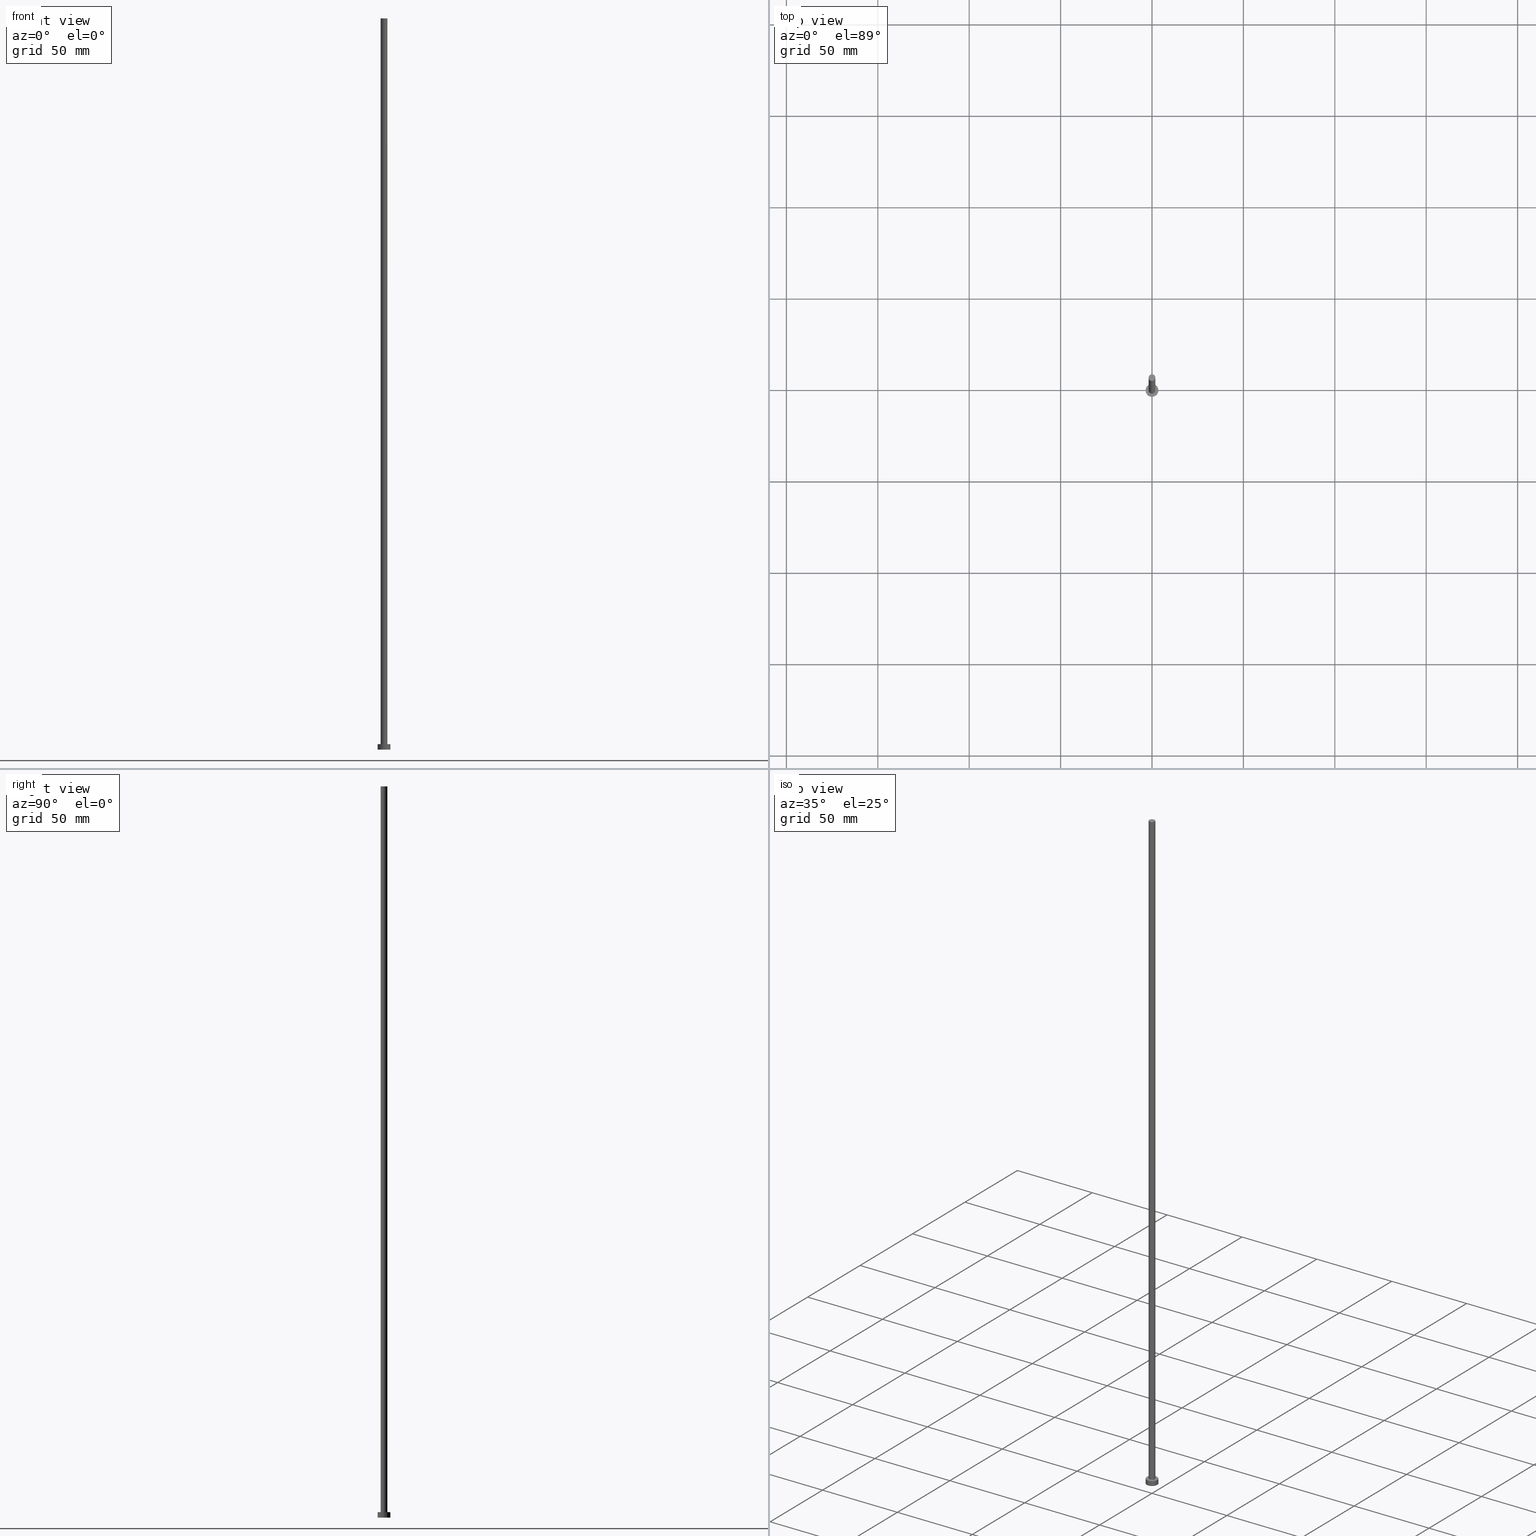
[diagram: canonical four-view strip — front | top / right | iso, engineering-drawing reading convention]
A machine part, canonical four-view strip (front | top / right | iso — engineering-drawing reading convention). The complete STEP part file that produces these views, byte-faithful:
ISO-10303-21;
HEADER;
FILE_DESCRIPTION (( 'STEP AP203' ),
    '1' );
FILE_NAME ('9256.STEP',
    '2026-02-06T12:42:30',
    ( '' ),
    ( '' ),
    'SwSTEP 2.0',
    'SolidWorks 2019',
    '' );
FILE_SCHEMA (( 'CONFIG_CONTROL_DESIGN' ));
ENDSEC;

DATA;
#1 = FACE_OUTER_BOUND ( 'NONE', #198, .T. ) ;
#2 = DIRECTION ( 'NONE',  ( 0.000000000000000000, 0.000000000000000000, 1.000000000000000000 ) ) ;
#3 = AXIS2_PLACEMENT_3D ( 'NONE', #74, #69, #118 ) ;
#4 = DIRECTION ( 'NONE',  ( -1.000000000000000000, 0.000000000000000000, 0.000000000000000000 ) ) ;
#5 = ORIENTED_EDGE ( 'NONE', *, *, #178, .T. ) ;
#6 = EDGE_CURVE ( 'NONE', #110, #68, #36, .T. ) ;
#7 = ORIENTED_EDGE ( 'NONE', *, *, #182, .F. ) ;
#8 = DIRECTION ( 'NONE',  ( 1.000000000000000000, 0.000000000000000000, 0.000000000000000000 ) ) ;
#9 = MECHANICAL_CONTEXT ( 'NONE', #63, 'mechanical' ) ;
#10 = LINE ( 'NONE', #144, #81 ) ;
#11 = ORIENTED_EDGE ( 'NONE', *, *, #165, .F. ) ;
#12 = CALENDAR_DATE ( 2026, 6, 2 ) ;
#13 = AXIS2_PLACEMENT_3D ( 'NONE', #143, #234, #56 ) ;
#14 = PERSON_AND_ORGANIZATION ( #111, #47 ) ;
#15 = EDGE_LOOP ( 'NONE', ( #243, #52 ) ) ;
#16 = CC_DESIGN_PERSON_AND_ORGANIZATION_ASSIGNMENT ( #32, #112, ( #194 ) ) ;
#17 = VERTEX_POINT ( 'NONE', #175 ) ;
#18 = PERSON_AND_ORGANIZATION ( #111, #47 ) ;
#19 = DIRECTION ( 'NONE',  ( -0.000000000000000000, -0.000000000000000000, -1.000000000000000000 ) ) ;
#20 = DATE_AND_TIME ( #156, #221 ) ;
#21 = DIRECTION ( 'NONE',  ( -0.000000000000000000, -0.000000000000000000, -1.000000000000000000 ) ) ;
#22 = CC_DESIGN_DATE_AND_TIME_ASSIGNMENT ( #75, #249, ( #49 ) ) ;
#23 = PLANE ( 'NONE',  #246 ) ;
#24 = CARTESIAN_POINT ( 'NONE',  ( 0.000000000000000000, 0.000000000000000000, 400.0000000000000000 ) ) ;
#25 = AXIS2_PLACEMENT_3D ( 'NONE', #163, #39, #239 ) ;
#26 = EDGE_CURVE ( 'NONE', #146, #68, #161, .T. ) ;
#27 = ADVANCED_FACE ( 'NONE', ( #44 ), #58, .T. ) ;
#28 = PERSON_AND_ORGANIZATION ( #111, #47 ) ;
#29 = EDGE_LOOP ( 'NONE', ( #109, #235, #189, #93 ) ) ;
#30 = COORDINATED_UNIVERSAL_TIME_OFFSET ( 1, 0, .AHEAD. ) ;
#31 = ORIENTED_EDGE ( 'NONE', *, *, #119, .F. ) ;
#32 = PERSON_AND_ORGANIZATION ( #111, #47 ) ;
#33 = CIRCLE ( 'NONE', #108, 1.850000000000000089 ) ;
#34 = EDGE_CURVE ( 'NONE', #134, #80, #70, .T. ) ;
#35 = DIRECTION ( 'NONE',  ( 1.000000000000000000, 0.000000000000000000, -0.000000000000000000 ) ) ;
#36 = LINE ( 'NONE', #236, #186 ) ;
#37 = CALENDAR_DATE ( 2026, 6, 2 ) ;
#38 = VECTOR ( 'NONE', #130, 1000.000000000000000 ) ;
#39 = DIRECTION ( 'NONE',  ( 0.000000000000000000, 0.000000000000000000, 1.000000000000000000 ) ) ;
#40 = AXIS2_PLACEMENT_3D ( 'NONE', #223, #114, #136 ) ;
#41 = APPROVAL ( #135, 'NEUR�EN�' ) ;
#42 = FACE_OUTER_BOUND ( 'NONE', #167, .T. ) ;
#43 = CC_DESIGN_APPROVAL ( #72, ( #49 ) ) ;
#44 = FACE_OUTER_BOUND ( 'NONE', #29, .T. ) ;
#45 = CARTESIAN_POINT ( 'NONE',  ( 0.000000000000000000, 0.000000000000000000, 400.0000000000000000 ) ) ;
#46 = FACE_OUTER_BOUND ( 'NONE', #95, .T. ) ;
#47 = ORGANIZATION ( 'NEUR�EN�', 'NEUR�EN�', '' ) ;
#48 = ORIENTED_EDGE ( 'NONE', *, *, #26, .F. ) ;
#49 = PRODUCT_DEFINITION ( 'NEZN�M�', '', #194, #209 ) ;
#50 = APPROVAL_STATUS ( 'not_yet_approved' ) ;
#51 = ADVANCED_FACE ( 'NONE', ( #238, #46 ), #23, .T. ) ;
#52 = ORIENTED_EDGE ( 'NONE', *, *, #197, .F. ) ;
#53 = AXIS2_PLACEMENT_3D ( 'NONE', #64, #201, #92 ) ;
#54 = APPROVAL_STATUS ( 'not_yet_approved' ) ;
#55 = ORIENTED_EDGE ( 'NONE', *, *, #197, .T. ) ;
#56 = DIRECTION ( 'NONE',  ( 1.000000000000000000, 0.000000000000000000, 0.000000000000000000 ) ) ;
#57 = EDGE_LOOP ( 'NONE', ( #59, #129 ) ) ;
#58 = CYLINDRICAL_SURFACE ( 'NONE', #87, 1.850000000000000089 ) ;
#59 = ORIENTED_EDGE ( 'NONE', *, *, #182, .T. ) ;
#60 = CARTESIAN_POINT ( 'NONE',  ( 0.000000000000000000, 0.000000000000000000, 3.000000000000000000 ) ) ;
#61 =( LENGTH_UNIT ( ) NAMED_UNIT ( * ) SI_UNIT ( .MILLI., .METRE. ) );
#62 = SHAPE_DEFINITION_REPRESENTATION ( #78, #171 ) ;
#63 = APPLICATION_CONTEXT ( 'configuration controlled 3d designs of mechanical parts and assemblies' ) ;
#64 = CARTESIAN_POINT ( 'NONE',  ( 0.000000000000000000, 0.000000000000000000, 3.000000000000000000 ) ) ;
#65 = CLOSED_SHELL ( 'NONE', ( #27, #230, #155, #51, #77, #88, #212 ) ) ;
#66 = CARTESIAN_POINT ( 'NONE',  ( -1.850000000000000089, 0.000000000000000000, 400.0000000000000000 ) ) ;
#67 = CARTESIAN_POINT ( 'NONE',  ( 1.850000000000000089, 2.265596578422603100E-16, 400.0000000000000000 ) ) ;
#68 = VERTEX_POINT ( 'NONE', #83 ) ;
#69 = DIRECTION ( 'NONE',  ( 0.000000000000000000, 0.000000000000000000, 1.000000000000000000 ) ) ;
#70 = CIRCLE ( 'NONE', #40, 3.500000000000000444 ) ;
#71 = UNCERTAINTY_MEASURE_WITH_UNIT (LENGTH_MEASURE( 1.000000000000000082E-05 ), #61, 'distance_accuracy_value', 'NONE');
#72 = APPROVAL ( #54, 'NEUR�EN�' ) ;
#73 = PERSON_AND_ORGANIZATION ( #111, #47 ) ;
#74 = CARTESIAN_POINT ( 'NONE',  ( 0.000000000000000000, 0.000000000000000000, 400.0000000000000000 ) ) ;
#75 = DATE_AND_TIME ( #79, #202 ) ;
#76 = APPROVAL_DATE_TIME ( #96, #218 ) ;
#77 = ADVANCED_FACE ( 'NONE', ( #254 ), #219, .F. ) ;
#78 = PRODUCT_DEFINITION_SHAPE ( 'NONE', 'NONE',  #49 ) ;
#79 = CALENDAR_DATE ( 2026, 6, 2 ) ;
#80 = VERTEX_POINT ( 'NONE', #100 ) ;
#81 = VECTOR ( 'NONE', #125, 1000.000000000000000 ) ;
#82 = PERSON_AND_ORGANIZATION_ROLE ( 'classification_officer' ) ;
#83 = CARTESIAN_POINT ( 'NONE',  ( -1.850000000000000089, 0.000000000000000000, 3.000000000000000000 ) ) ;
#84 = CC_DESIGN_PERSON_AND_ORGANIZATION_ASSIGNMENT ( #159, #82, ( #126 ) ) ;
#85 = LOCAL_TIME ( 13, 42, 30.00000000000000000, #188 ) ;
#86 = CC_DESIGN_SECURITY_CLASSIFICATION ( #126, ( #194 ) ) ;
#87 = AXIS2_PLACEMENT_3D ( 'NONE', #164, #19, #122 ) ;
#88 = ADVANCED_FACE ( 'NONE', ( #91 ), #179, .T. ) ;
#89 = EDGE_CURVE ( 'NONE', #68, #146, #140, .T. ) ;
#90 = LINE ( 'NONE', #204, #141 ) ;
#91 = FACE_OUTER_BOUND ( 'NONE', #251, .T. ) ;
#92 = DIRECTION ( 'NONE',  ( 1.000000000000000000, 0.000000000000000000, 0.000000000000000000 ) ) ;
#93 = ORIENTED_EDGE ( 'NONE', *, *, #6, .F. ) ;
#94 = FACE_OUTER_BOUND ( 'NONE', #57, .T. ) ;
#95 = EDGE_LOOP ( 'NONE', ( #190, #154 ) ) ;
#96 = DATE_AND_TIME ( #12, #177 ) ;
#97 = DIRECTION ( 'NONE',  ( 1.000000000000000000, 0.000000000000000000, -0.000000000000000000 ) ) ;
#98 = DIRECTION ( 'NONE',  ( 0.000000000000000000, 0.000000000000000000, 1.000000000000000000 ) ) ;
#99 = CARTESIAN_POINT ( 'NONE',  ( 3.500000000000000444, 4.286263797015737088E-16, 3.000000000000000000 ) ) ;
#100 = CARTESIAN_POINT ( 'NONE',  ( -3.500000000000000444, 0.000000000000000000, 3.000000000000000000 ) ) ;
#101 = PRODUCT_RELATED_PRODUCT_CATEGORY ( 'detail', '', ( #187 ) ) ;
#102 = CIRCLE ( 'NONE', #13, 3.500000000000000444 ) ;
#103 = CC_DESIGN_APPROVAL ( #218, ( #194 ) ) ;
#104 = DIRECTION ( 'NONE',  ( 0.000000000000000000, 0.000000000000000000, 1.000000000000000000 ) ) ;
#105 = APPLICATION_CONTEXT ( 'configuration controlled 3d designs of mechanical parts and assemblies' ) ;
#106 = EDGE_CURVE ( 'NONE', #170, #110, #33, .T. ) ;
#107 = APPROVAL_PERSON_ORGANIZATION ( #18, #41, #113 ) ;
#108 = AXIS2_PLACEMENT_3D ( 'NONE', #24, #116, #157 ) ;
#109 = ORIENTED_EDGE ( 'NONE', *, *, #106, .F. ) ;
#110 = VERTEX_POINT ( 'NONE', #66 ) ;
#111 = PERSON ( 'NEUR�EN�', 'NEUR�EN�', 'NEUR�EN�', ('NEUR�EN�'), ('NEUR�EN�'), ('NEUR�EN�') ) ;
#112 = PERSON_AND_ORGANIZATION_ROLE ( 'creator' ) ;
#113 = APPROVAL_ROLE ( '' ) ;
#114 = DIRECTION ( 'NONE',  ( 0.000000000000000000, 0.000000000000000000, 1.000000000000000000 ) ) ;
#115 = AXIS2_PLACEMENT_3D ( 'NONE', #210, #104, #8 ) ;
#116 = DIRECTION ( 'NONE',  ( 0.000000000000000000, 0.000000000000000000, 1.000000000000000000 ) ) ;
#117 = LINE ( 'NONE', #232, #38 ) ;
#118 = DIRECTION ( 'NONE',  ( 1.000000000000000000, 0.000000000000000000, -0.000000000000000000 ) ) ;
#119 = EDGE_CURVE ( 'NONE', #170, #146, #90, .T. ) ;
#120 = APPROVAL_DATE_TIME ( #203, #41 ) ;
#121 = CC_DESIGN_PERSON_AND_ORGANIZATION_ASSIGNMENT ( #14, #173, ( #194 ) ) ;
#122 = DIRECTION ( 'NONE',  ( -1.000000000000000000, 0.000000000000000000, 0.000000000000000000 ) ) ;
#123 = DIRECTION ( 'NONE',  ( -0.000000000000000000, -0.000000000000000000, -1.000000000000000000 ) ) ;
#124 = ORIENTED_EDGE ( 'NONE', *, *, #89, .T. ) ;
#125 = DIRECTION ( 'NONE',  ( -0.000000000000000000, -0.000000000000000000, -1.000000000000000000 ) ) ;
#126 = SECURITY_CLASSIFICATION ( '', '', #250 ) ;
#127 = DIRECTION ( 'NONE',  ( 1.000000000000000000, 0.000000000000000000, 0.000000000000000000 ) ) ;
#128 = DIRECTION ( 'NONE',  ( 0.000000000000000000, 0.000000000000000000, 1.000000000000000000 ) ) ;
#129 = ORIENTED_EDGE ( 'NONE', *, *, #106, .T. ) ;
#130 = DIRECTION ( 'NONE',  ( -0.000000000000000000, -0.000000000000000000, -1.000000000000000000 ) ) ;
#131 = CARTESIAN_POINT ( 'NONE',  ( 0.000000000000000000, 0.000000000000000000, 0.000000000000000000 ) ) ;
#132 = COORDINATED_UNIVERSAL_TIME_OFFSET ( 1, 0, .AHEAD. ) ;
#133 = CARTESIAN_POINT ( 'NONE',  ( 0.000000000000000000, 0.000000000000000000, 400.0000000000000000 ) ) ;
#134 = VERTEX_POINT ( 'NONE', #99 ) ;
#135 = APPROVAL_STATUS ( 'not_yet_approved' ) ;
#136 = DIRECTION ( 'NONE',  ( 1.000000000000000000, 0.000000000000000000, 0.000000000000000000 ) ) ;
#137 = DIRECTION ( 'NONE',  ( -1.000000000000000000, 0.000000000000000000, 0.000000000000000000 ) ) ;
#138 =( GEOMETRIC_REPRESENTATION_CONTEXT ( 3 ) GLOBAL_UNCERTAINTY_ASSIGNED_CONTEXT ( ( #71 ) ) GLOBAL_UNIT_ASSIGNED_CONTEXT ( ( #61, #215, #216 ) ) REPRESENTATION_CONTEXT ( 'NONE', 'WORKASPACE' ) );
#139 = DIRECTION ( 'NONE',  ( -0.000000000000000000, -0.000000000000000000, -1.000000000000000000 ) ) ;
#140 = CIRCLE ( 'NONE', #25, 1.850000000000000089 ) ;
#141 = VECTOR ( 'NONE', #21, 1000.000000000000000 ) ;
#142 = CYLINDRICAL_SURFACE ( 'NONE', #240, 3.500000000000000444 ) ;
#143 = CARTESIAN_POINT ( 'NONE',  ( 0.000000000000000000, 0.000000000000000000, 0.000000000000000000 ) ) ;
#144 = CARTESIAN_POINT ( 'NONE',  ( 3.500000000000000444, 4.286263797015737088E-16, 3.000000000000000000 ) ) ;
#145 = ORIENTED_EDGE ( 'NONE', *, *, #244, .T. ) ;
#146 = VERTEX_POINT ( 'NONE', #180 ) ;
#147 = DIRECTION ( 'NONE',  ( 1.000000000000000000, 0.000000000000000000, 0.000000000000000000 ) ) ;
#148 = DATE_AND_TIME ( #153, #85 ) ;
#149 = AXIS2_PLACEMENT_3D ( 'NONE', #60, #139, #137 ) ;
#150 = CC_DESIGN_APPROVAL ( #41, ( #126 ) ) ;
#151 = CC_DESIGN_DATE_AND_TIME_ASSIGNMENT ( #20, #233, ( #126 ) ) ;
#152 = PERSON_AND_ORGANIZATION ( #111, #47 ) ;
#153 = CALENDAR_DATE ( 2026, 6, 2 ) ;
#154 = ORIENTED_EDGE ( 'NONE', *, *, #34, .T. ) ;
#155 = ADVANCED_FACE ( 'NONE', ( #1 ), #142, .T. ) ;
#156 = CALENDAR_DATE ( 2026, 6, 2 ) ;
#157 = DIRECTION ( 'NONE',  ( 1.000000000000000000, 0.000000000000000000, 0.000000000000000000 ) ) ;
#158 = ORIENTED_EDGE ( 'NONE', *, *, #89, .F. ) ;
#159 = PERSON_AND_ORGANIZATION ( #111, #47 ) ;
#160 = CARTESIAN_POINT ( 'NONE',  ( 0.000000000000000000, 0.000000000000000000, 0.000000000000000000 ) ) ;
#161 = CIRCLE ( 'NONE', #195, 1.850000000000000089 ) ;
#162 = CARTESIAN_POINT ( 'NONE',  ( 0.000000000000000000, 0.000000000000000000, 3.000000000000000000 ) ) ;
#163 = CARTESIAN_POINT ( 'NONE',  ( 0.000000000000000000, 0.000000000000000000, 3.000000000000000000 ) ) ;
#164 = CARTESIAN_POINT ( 'NONE',  ( 0.000000000000000000, 0.000000000000000000, 400.0000000000000000 ) ) ;
#165 = EDGE_CURVE ( 'NONE', #80, #134, #172, .T. ) ;
#166 = EDGE_LOOP ( 'NONE', ( #158, #48 ) ) ;
#167 = EDGE_LOOP ( 'NONE', ( #199, #176, #55, #184 ) ) ;
#168 = PLANE ( 'NONE',  #3 ) ;
#169 = PERSON_AND_ORGANIZATION_ROLE ( 'design_owner' ) ;
#170 = VERTEX_POINT ( 'NONE', #67 ) ;
#171 = ADVANCED_BREP_SHAPE_REPRESENTATION ( '9256', ( #183, #208 ), #138 ) ;
#172 = CIRCLE ( 'NONE', #53, 3.500000000000000444 ) ;
#173 = PERSON_AND_ORGANIZATION_ROLE ( 'design_supplier' ) ;
#174 = DIRECTION ( 'NONE',  ( -0.000000000000000000, -0.000000000000000000, -1.000000000000000000 ) ) ;
#175 = CARTESIAN_POINT ( 'NONE',  ( 3.500000000000000444, 4.286263797015737088E-16, 0.000000000000000000 ) ) ;
#176 = ORIENTED_EDGE ( 'NONE', *, *, #192, .T. ) ;
#177 = LOCAL_TIME ( 13, 42, 30.00000000000000000, #213 ) ;
#178 = EDGE_CURVE ( 'NONE', #226, #17, #102, .T. ) ;
#179 = CYLINDRICAL_SURFACE ( 'NONE', #225, 1.850000000000000089 ) ;
#180 = CARTESIAN_POINT ( 'NONE',  ( 1.850000000000000089, 2.265596578422603100E-16, 3.000000000000000000 ) ) ;
#181 = LOCAL_TIME ( 13, 42, 30.00000000000000000, #200 ) ;
#182 = EDGE_CURVE ( 'NONE', #110, #170, #228, .T. ) ;
#183 = MANIFOLD_SOLID_BREP ( 'P�idat vysunut�m3', #65 ) ;
#184 = ORIENTED_EDGE ( 'NONE', *, *, #244, .F. ) ;
#185 = APPROVAL_PERSON_ORGANIZATION ( #152, #218, #231 ) ;
#186 = VECTOR ( 'NONE', #123, 1000.000000000000000 ) ;
#187 = PRODUCT ( '9256', '9256', '', ( #9 ) ) ;
#188 = COORDINATED_UNIVERSAL_TIME_OFFSET ( 1, 0, .AHEAD. ) ;
#189 = ORIENTED_EDGE ( 'NONE', *, *, #26, .T. ) ;
#190 = ORIENTED_EDGE ( 'NONE', *, *, #165, .T. ) ;
#191 = APPROVAL_ROLE ( '' ) ;
#192 = EDGE_CURVE ( 'NONE', #134, #17, #10, .T. ) ;
#193 = APPROVAL_PERSON_ORGANIZATION ( #28, #72, #191 ) ;
#194 = PRODUCT_DEFINITION_FORMATION_WITH_SPECIFIED_SOURCE ( 'LIBOVOLN�', '', #187, .NOT_KNOWN. ) ;
#195 = AXIS2_PLACEMENT_3D ( 'NONE', #222, #255, #207 ) ;
#196 = PERSON_AND_ORGANIZATION ( #111, #47 ) ;
#197 = EDGE_CURVE ( 'NONE', #17, #226, #253, .T. ) ;
#198 = EDGE_LOOP ( 'NONE', ( #242, #11, #145, #5 ) ) ;
#199 = ORIENTED_EDGE ( 'NONE', *, *, #34, .F. ) ;
#200 = COORDINATED_UNIVERSAL_TIME_OFFSET ( 1, 0, .AHEAD. ) ;
#201 = DIRECTION ( 'NONE',  ( 0.000000000000000000, 0.000000000000000000, 1.000000000000000000 ) ) ;
#202 = LOCAL_TIME ( 13, 42, 30.00000000000000000, #30 ) ;
#203 = DATE_AND_TIME ( #37, #181 ) ;
#204 = CARTESIAN_POINT ( 'NONE',  ( 1.850000000000000089, 2.265596578422603100E-16, 400.0000000000000000 ) ) ;
#205 = CARTESIAN_POINT ( 'NONE',  ( 0.000000000000000000, 0.000000000000000000, 3.000000000000000000 ) ) ;
#206 = DIRECTION ( 'NONE',  ( -1.000000000000000000, 0.000000000000000000, 0.000000000000000000 ) ) ;
#207 = DIRECTION ( 'NONE',  ( 1.000000000000000000, 0.000000000000000000, 0.000000000000000000 ) ) ;
#208 = AXIS2_PLACEMENT_3D ( 'NONE', #131, #128, #127 ) ;
#209 = DESIGN_CONTEXT ( 'detailed design', #105, 'design' ) ;
#210 = CARTESIAN_POINT ( 'NONE',  ( 0.000000000000000000, 0.000000000000000000, 0.000000000000000000 ) ) ;
#211 = AXIS2_PLACEMENT_3D ( 'NONE', #160, #98, #35 ) ;
#212 = ADVANCED_FACE ( 'NONE', ( #94 ), #168, .T. ) ;
#213 = COORDINATED_UNIVERSAL_TIME_OFFSET ( 1, 0, .AHEAD. ) ;
#214 = APPLICATION_PROTOCOL_DEFINITION ( 'international standard', 'config_control_design', 1994, #105 ) ;
#215 =( NAMED_UNIT ( * ) PLANE_ANGLE_UNIT ( ) SI_UNIT ( $, .RADIAN. ) );
#216 =( NAMED_UNIT ( * ) SI_UNIT ( $, .STERADIAN. ) SOLID_ANGLE_UNIT ( ) );
#217 = DIRECTION ( 'NONE',  ( 0.000000000000000000, 0.000000000000000000, 1.000000000000000000 ) ) ;
#218 = APPROVAL ( #50, 'NEUR�EN�' ) ;
#219 = PLANE ( 'NONE',  #211 ) ;
#220 = CARTESIAN_POINT ( 'NONE',  ( -3.500000000000000444, 0.000000000000000000, 0.000000000000000000 ) ) ;
#221 = LOCAL_TIME ( 13, 42, 30.00000000000000000, #132 ) ;
#222 = CARTESIAN_POINT ( 'NONE',  ( 0.000000000000000000, 0.000000000000000000, 3.000000000000000000 ) ) ;
#223 = CARTESIAN_POINT ( 'NONE',  ( 0.000000000000000000, 0.000000000000000000, 3.000000000000000000 ) ) ;
#224 = AXIS2_PLACEMENT_3D ( 'NONE', #133, #217, #147 ) ;
#225 = AXIS2_PLACEMENT_3D ( 'NONE', #45, #174, #206 ) ;
#226 = VERTEX_POINT ( 'NONE', #220 ) ;
#227 = APPROVAL_DATE_TIME ( #148, #72 ) ;
#228 = CIRCLE ( 'NONE', #224, 1.850000000000000089 ) ;
#229 = APPLICATION_PROTOCOL_DEFINITION ( 'international standard', 'config_control_design', 1994, #63 ) ;
#230 = ADVANCED_FACE ( 'NONE', ( #42 ), #237, .T. ) ;
#231 = APPROVAL_ROLE ( '' ) ;
#232 = CARTESIAN_POINT ( 'NONE',  ( -3.500000000000000444, 0.000000000000000000, 3.000000000000000000 ) ) ;
#233 = DATE_TIME_ROLE ( 'classification_date' ) ;
#234 = DIRECTION ( 'NONE',  ( 0.000000000000000000, 0.000000000000000000, 1.000000000000000000 ) ) ;
#235 = ORIENTED_EDGE ( 'NONE', *, *, #119, .T. ) ;
#236 = CARTESIAN_POINT ( 'NONE',  ( -1.850000000000000089, 0.000000000000000000, 400.0000000000000000 ) ) ;
#237 = CYLINDRICAL_SURFACE ( 'NONE', #149, 3.500000000000000444 ) ;
#238 = FACE_BOUND ( 'NONE', #166, .T. ) ;
#239 = DIRECTION ( 'NONE',  ( 1.000000000000000000, 0.000000000000000000, 0.000000000000000000 ) ) ;
#240 = AXIS2_PLACEMENT_3D ( 'NONE', #162, #241, #4 ) ;
#241 = DIRECTION ( 'NONE',  ( -0.000000000000000000, -0.000000000000000000, -1.000000000000000000 ) ) ;
#242 = ORIENTED_EDGE ( 'NONE', *, *, #192, .F. ) ;
#243 = ORIENTED_EDGE ( 'NONE', *, *, #178, .F. ) ;
#244 = EDGE_CURVE ( 'NONE', #80, #226, #117, .T. ) ;
#245 = PERSON_AND_ORGANIZATION_ROLE ( 'creator' ) ;
#246 = AXIS2_PLACEMENT_3D ( 'NONE', #205, #2, #97 ) ;
#247 = CC_DESIGN_PERSON_AND_ORGANIZATION_ASSIGNMENT ( #73, #169, ( #187 ) ) ;
#248 = ORIENTED_EDGE ( 'NONE', *, *, #6, .T. ) ;
#249 = DATE_TIME_ROLE ( 'creation_date' ) ;
#250 = SECURITY_CLASSIFICATION_LEVEL ( 'unclassified' ) ;
#251 = EDGE_LOOP ( 'NONE', ( #31, #7, #248, #124 ) ) ;
#252 = CC_DESIGN_PERSON_AND_ORGANIZATION_ASSIGNMENT ( #196, #245, ( #49 ) ) ;
#253 = CIRCLE ( 'NONE', #115, 3.500000000000000444 ) ;
#254 = FACE_OUTER_BOUND ( 'NONE', #15, .T. ) ;
#255 = DIRECTION ( 'NONE',  ( 0.000000000000000000, 0.000000000000000000, 1.000000000000000000 ) ) ;
ENDSEC;
END-ISO-10303-21;
